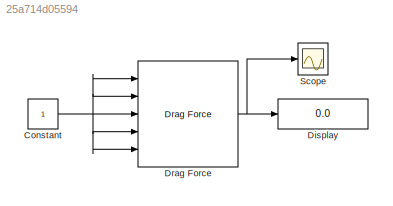
MODEL slx_25a714d05594
KIND model
BLOCK [Constant] Constant
BLOCK [Display] Display
  Decimation = 1
  Ports = [1]
BLOCK [Reference] Drag Force  REF=rocket_drag_library/Drag Force  (lib defined in slx_51275aa4cfd2)
  Ports = [5, 1]
  SourceBlock = rocket_drag_library/Drag Force
  SourceType = SubSystem
BLOCK [Scope] Scope
  DataFormat = StructureWithTime
  Floating = off
  NumInputPorts = 1
  Ports = [1]
  SampleTime = 0
  ShowLegends = off
NET Constant:1 -> Drag Force:1, Drag Force:2, Drag Force:3, Drag Force:4, Drag Force:5
NET Drag Force:1 -> Display:1, Scope:1
note: NET lines group one-source signal fan-out (src -> all destinations, sorted); 1:1 wires keep LINE
